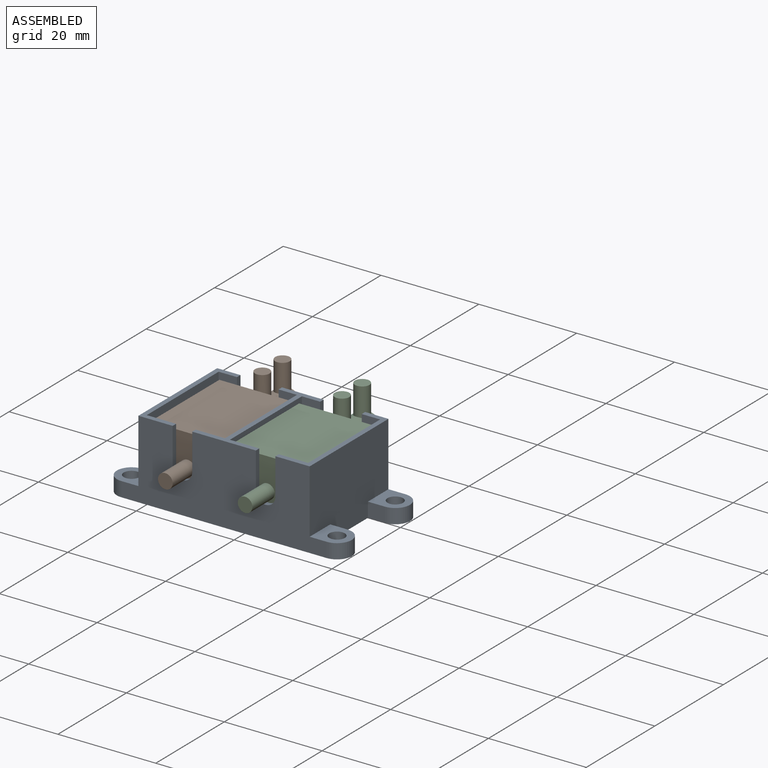
[diagram: assembled view]
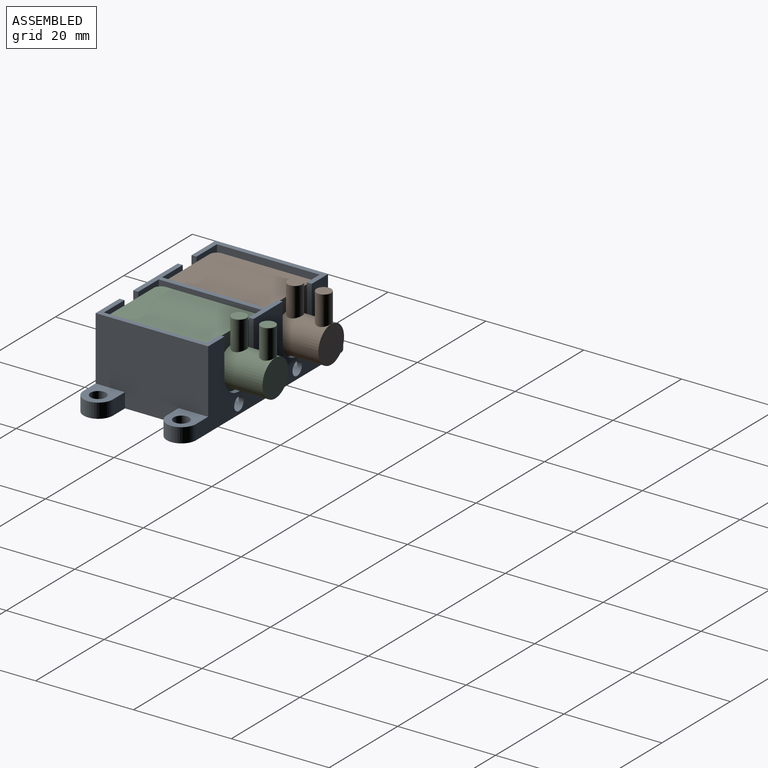
[diagram: assembled view, second angle]
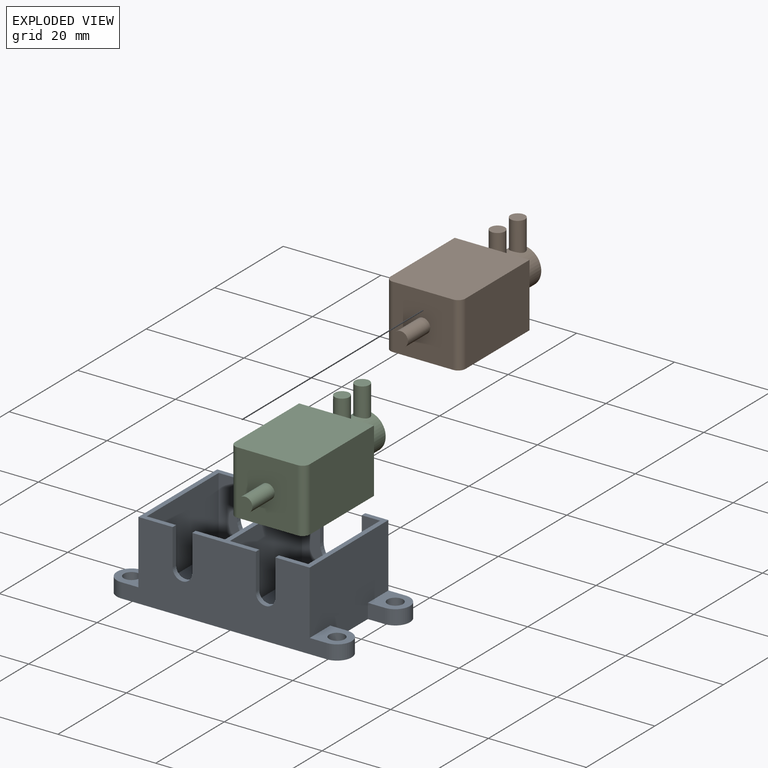
[diagram: exploded view]
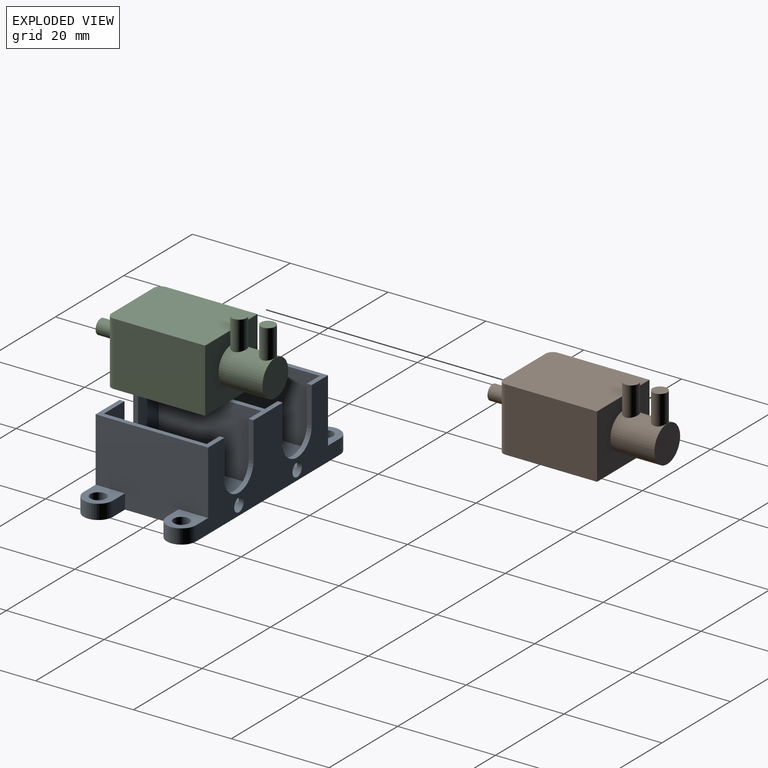
[diagram: exploded view, second angle]
ASSEMBLY  parts=3 mates=6
PART A: 54 faces, bbox 48x23x16 mm
  f0: plane 23x16mm, normal (-1,0,0), area 332mm2, adj f2,f3,f5,f7,f39,f41,f46,f49
  f1: plane 23x13mm, normal (0,0,1), area 42.5mm2, adj f3,f5,f8,f9,f11,f14,f15,f16
  f2: plane 23x7mm, normal (0,0,1), area 32.8mm2, adj f0,f3,f5,f13,f14,f16,f20,f25
  f3: plane 42x16mm, normal (0,-1,0), area 508.4mm2, adj f0,f1,f2,f4,f6,f7,f18,f19
  f4: plane 23x7mm, normal (0,0,1), area 32.8mm2, adj f3,f5,f6,f9,f10,f11,f22,f29
  f5: plane 42x16mm, normal (0,1,0), area 384.9mm2, adj f0,f1,f2,f4,f6,f7,f24,f25
  f6: plane 23x16mm, normal (1,0,0), area 332mm2, adj f3,f4,f5,f7,f42,f45,f50,f53
  f7: plane 48x23mm, normal (0,0,-1), area 913.4mm2, adj f0,f3,f5,f6,f38,f39,f40,f42
  f8: plane 21x14mm, normal (1,0,0), area 294mm2, adj f1,f9,f11,f12
  f9: plane 16x14mm, normal (0,1,0), area 187.7mm2, adj f1,f4,f8,f10,f12,f21,f22,f23
  f10: plane 21x14mm, normal (-1,0,0), area 294mm2, adj f4,f9,f11,f12
  f11: plane 16x14.58mm, normal (0,-1,0), area 129.1mm2, adj f1,f4,f8,f10,f12,f27,f28,f29
  f12: plane 21x16mm, normal (0,0,1), area 254.1mm2, adj f8,f9,f10,f11,f33,f34,f35
  f13: plane 21x14mm, normal (1,0,0), area 294mm2, adj f2,f14,f16,f17
  f14: plane 16x14mm, normal (0,1,0), area 187.7mm2, adj f1,f2,f13,f15,f17,f18,f19,f20
  f15: plane 21x14mm, normal (-1,0,0), area 294mm2, adj f1,f14,f16,f17
  f16: plane 16x14.58mm, normal (0,-1,0), area 129.1mm2, adj f1,f2,f13,f15,f17,f24,f25,f26
  f17: plane 21x16mm, normal (0,0,1), area 254.1mm2, adj f13,f14,f15,f16,f31,f36,f37
  f18: cylinder r=2mm len=4mm, axis (0,-1,0), area 6.3mm2, adj f3,f14,f19,f20
  f19: plane 7.5x1mm, normal (-1,0,0), area 7.5mm2, adj f1,f3,f14,f18
  f20: plane 7.5x1mm, normal (1,0,0), area 7.5mm2, adj f2,f3,f14,f18
  f21: cylinder r=2mm len=4mm, axis (0,-1,0), area 6.3mm2, adj f3,f9,f22,f23
  f22: plane 7.5x1mm, normal (-1,0,0), area 7.5mm2, adj f3,f4,f9,f21
  f23: plane 7.5x1mm, normal (1,0,0), area 7.5mm2, adj f1,f3,f9,f21
  f24: cylinder r=4.25mm len=8.5mm, axis (0,1,0), area 13.4mm2, adj f5,f16,f25,f26
  f25: plane 7.5x1mm, normal (1,0,0), area 7.5mm2, adj f2,f5,f16,f24
  f26: plane 7.5x1mm, normal (-1,0,0), area 7.5mm2, adj f1,f5,f16,f24
  f27: cylinder r=4.25mm len=8.5mm, axis (0,1,0), area 13.4mm2, adj f5,f11,f28,f29
  f28: plane 7.5x1mm, normal (1,0,0), area 7.5mm2, adj f1,f5,f11,f27
  f29: plane 7.5x1mm, normal (-1,0,0), area 7.5mm2, adj f4,f5,f11,f27
  f30: cylinder r=1.38mm len=20mm, axis (0,1,0), area 68mm2, adj f5,f16,f31,f36,f37
  f31: plane 4.31x1.38mm, normal (0,1,0), area 3.2mm2, adj f17,f30,f36,f37
  f32: cylinder r=1.38mm len=20mm, axis (0,1,0), area 68mm2, adj f5,f11,f33,f34,f35
  f33: plane 4.31x1.38mm, normal (0,1,0), area 3.2mm2, adj f12,f32,f34,f35
  f34: cylinder r=1mm len=19mm, axis (0,1,0), area 21.6mm2, adj f11,f12,f32,f33
  f35: cylinder r=1mm len=19mm, axis (0,1,0), area 21.6mm2, adj f11,f12,f32,f33
  f36: cylinder r=1mm len=19mm, axis (0,1,0), area 21.6mm2, adj f16,f17,f30,f31
  f37: cylinder r=1mm len=19mm, axis (0,1,0), area 21.6mm2, adj f16,f17,f30,f31
  f38: cylinder r=3mm len=6mm, axis (0,0,-1), area 28.3mm2, adj f5,f7,f39,f41
  f39: plane 3.5x3mm, normal (0,-1,0), area 10.5mm2, adj f0,f7,f38,f41
  f40: cylinder r=1.6mm len=3.2mm, axis (0,0,-1), area 30.2mm2, adj f7,f41
  f41: plane 6.5x6mm, normal (0,0,1), area 27.1mm2, adj f0,f5,f38,f39,f40
  f42: plane 3.5x3mm, normal (0,-1,0), area 10.5mm2, adj f6,f7,f44,f45
  f43: cylinder r=1.6mm len=3.2mm, axis (0,0,-1), area 30.2mm2, adj f7,f45
  f44: cylinder r=3mm len=6mm, axis (0,0,-1), area 28.3mm2, adj f5,f7,f42,f45
  f45: plane 6.5x6mm, normal (0,0,1), area 27.1mm2, adj f5,f6,f42,f43,f44
  f46: plane 3.5x3mm, normal (0,1,0), area 10.5mm2, adj f0,f7,f48,f49
  f47: cylinder r=1.6mm len=3.2mm, axis (0,0,-1), area 30.2mm2, adj f7,f49
  f48: cylinder r=3mm len=6mm, axis (0,0,-1), area 28.3mm2, adj f3,f7,f46,f49
  f49: plane 6.5x6mm, normal (0,0,1), area 27.1mm2, adj f0,f3,f46,f47,f48
  f50: plane 3.5x3mm, normal (0,1,0), area 10.5mm2, adj f6,f7,f52,f53
  f51: cylinder r=1.6mm len=3.2mm, axis (0,0,-1), area 30.2mm2, adj f7,f53
  f52: cylinder r=3mm len=6mm, axis (0,0,-1), area 28.3mm2, adj f3,f7,f50,f53
  f53: plane 6.5x6mm, normal (0,0,1), area 27.1mm2, adj f3,f6,f50,f51,f52
PART B: 16 faces, bbox 35.7x15.3x16 mm
  f0: cylinder r=3.75mm len=9mm, axis (1,0,0), area 197.6mm2, adj f1,f9,f12,f14
  f1: plane 15.3x13mm, normal (-1,0,0), area 154.7mm2, adj f0,f2,f4,f5,f6
  f2: plane 18.7x13mm, normal (0,-1,0), area 243.1mm2, adj f1,f5,f6,f7
  f3: plane 13x12.3mm, normal (1,0,0), area 152.8mm2, adj f5,f6,f7,f8,f10
  f4: plane 18.7x13mm, normal (0,1,0), area 243.1mm2, adj f1,f5,f6,f8
  f5: plane 20.2x15.3mm, normal (0,0,1), area 308.1mm2, adj f1,f2,f3,f4,f7,f8
  f6: plane 20.2x15.3mm, normal (0,0,-1), area 308.1mm2, adj f1,f2,f3,f4,f7,f8
  f7: cylinder r=1.5mm len=13mm, axis (0,0,1), area 30.6mm2, adj f2,f3,f5,f6
  f8: cylinder r=1.5mm len=13mm, axis (0,0,-1), area 30.6mm2, adj f3,f4,f5,f6
  f9: plane 7.5x7.5mm, normal (-1,0,0), area 44.2mm2, adj f0
  f10: cylinder r=1.5mm len=6.5mm, axis (-1,0,0), area 61.3mm2, adj f3,f11
  f11: plane 3x3mm, normal (1,0,0), area 7.1mm2, adj f10
  f12: cylinder r=1.5mm len=6.06mm, axis (0,0,-1), area 55.7mm2, adj f0,f13
  f13: plane 3x3mm, normal (0,0,-1), area 7.1mm2, adj f12
  f14: cylinder r=1.5mm len=6.06mm, axis (0,0,-1), area 55.7mm2, adj f0,f15
  f15: plane 3x3mm, normal (0,0,-1), area 7.1mm2, adj f14
PART C: same geometry as B
PLACE A at identity
PLACE B rot(axis=(-0.71,0.71,0),180deg) t=(-8.15,-0.4,15)mm
PLACE C rot(axis=(-0.71,0.71,0),180deg) t=(8.15,-0.4,15)mm
MATE planar B.f10 <-> A.f24  axis (0,-1,0) through (-8.15,-10.5,8.5)mm
MATE planar C.f5 <-> A.f12  axis (0,0,-1) through (8.15,-0.37,2)mm
MATE planar B.f2 <-> A.f15  axis (1,0,0) through (-0.5,0.35,8.5)mm
MATE planar C.f10 <-> A.f27  axis (0,-1,0) through (8.15,-10.5,8.5)mm
MATE planar B.f5 <-> A.f17  axis (0,0,-1) through (-8.15,-0.37,2)mm
MATE planar C.f4 <-> A.f8  axis (-1,0,0) through (0.5,0.35,8.5)mm
